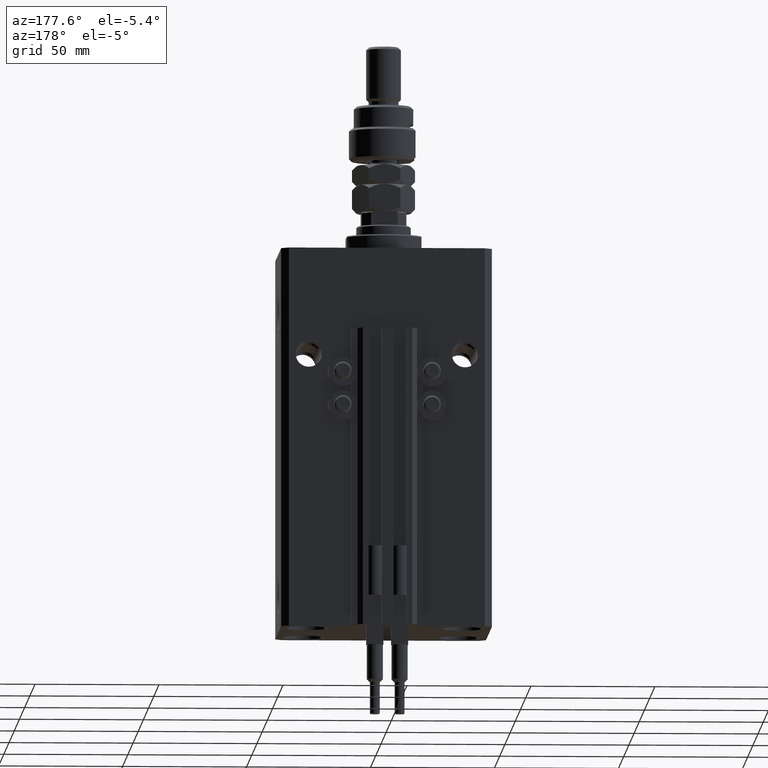
[diagram: clean part render]
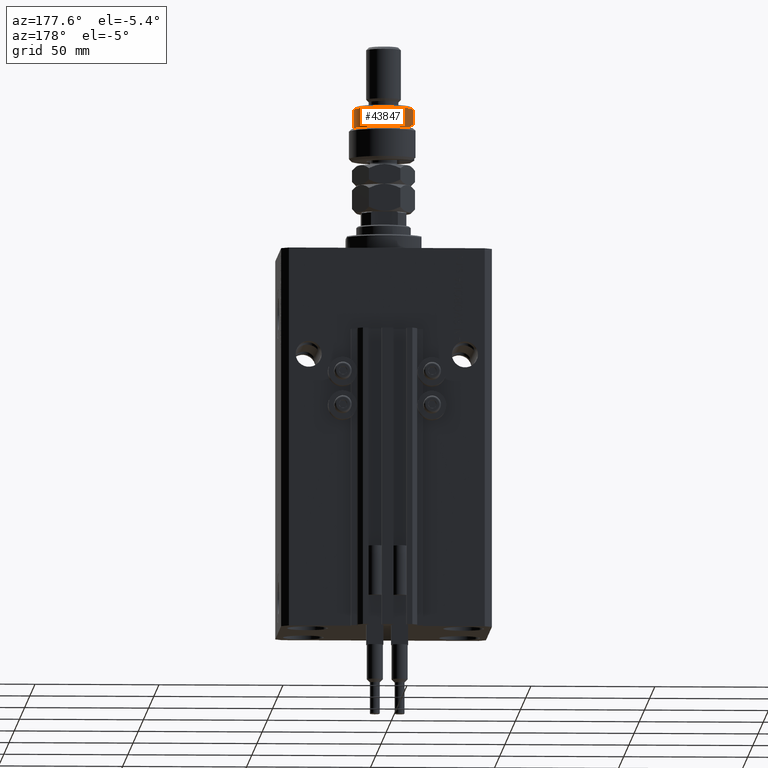
[diagram: same view with one face highlighted and labeled with its STEP entity id]
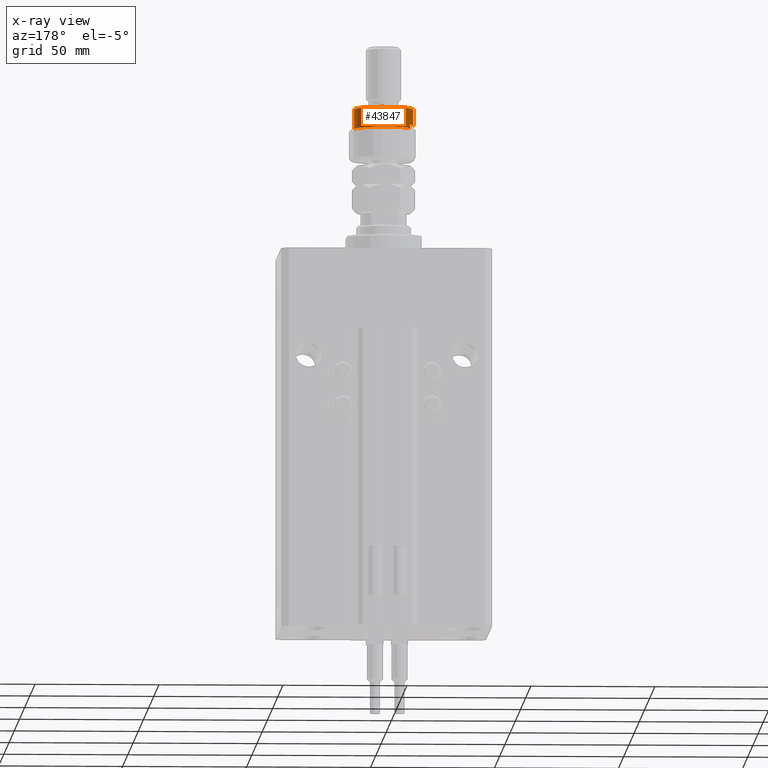
[diagram: x-ray of the same camera — body ghosted, the highlighted face saturated]
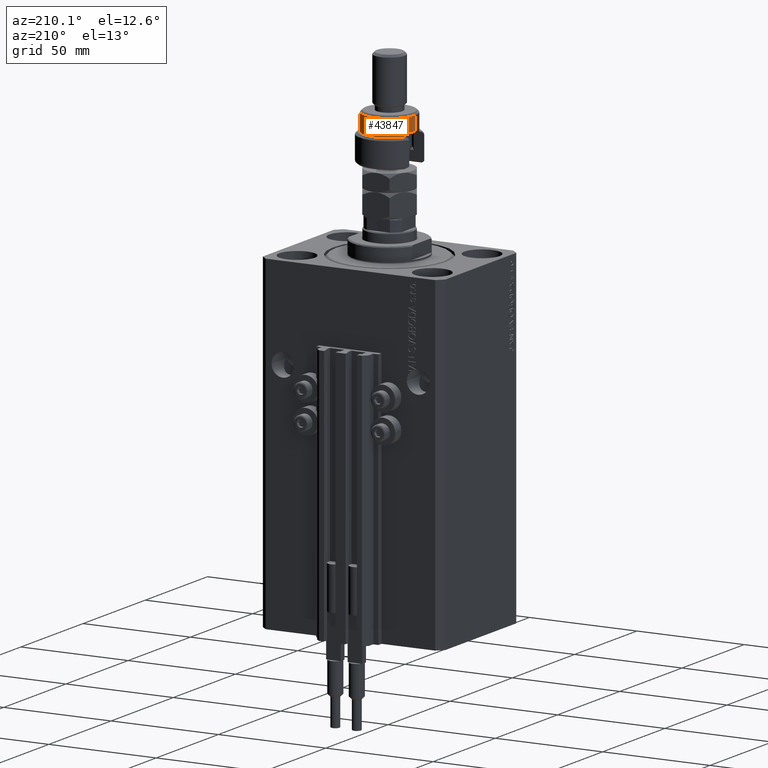
[diagram: same view with one face highlighted and labeled with its STEP entity id]
A machine part, auxiliary view. The second image highlights one B-rep face of the part: STEP entity #43847.
The next image is the same camera in x-ray: the body ghosted, the highlighted face saturated — about 0% of this face is hidden behind the body in this view.
A second angle (auxiliary view) of the same face is appended — the face is thin or edge-on in the first view.
In plain terms, the highlighted cylindrical surface (edge-blend (fillet) strip) has radius 12 mm, axis along (-0, -0, -1).
Its self-contained STEP definition (entity closure, byte-faithful):
#1036 = FACE_OUTER_BOUND ( 'NONE', #5955, .T. ) ;
#1493 = CARTESIAN_POINT ( 'NONE',  ( 12.00000000000000178, 1.469576158976824144E-15, 20.99999999999999645 ) ) ;
#3099 = VERTEX_POINT ( 'NONE', #1493 ) ;
#4394 = CARTESIAN_POINT ( 'NONE',  ( -10.39230484541326760, 6.000000000000000000, 13.00000000000000000 ) ) ;
#4901 = ORIENTED_EDGE ( 'NONE', *, *, #8968, .F. ) ;
#5398 = EDGE_CURVE ( 'NONE', #26804, #3099, #46182, .T. ) ;
#5955 = EDGE_LOOP ( 'NONE', ( #8530, #27721, #19606, #34993, #4901, #8810 ) ) ;
#6442 = AXIS2_PLACEMENT_3D ( 'NONE', #20682, #13180, #12912 ) ;
#6498 = AXIS2_PLACEMENT_3D ( 'NONE', #12689, #25138, #40987 ) ;
#7098 = DIRECTION ( 'NONE',  ( -0.000000000000000000, -0.000000000000000000, -1.000000000000000000 ) ) ;
#8530 = ORIENTED_EDGE ( 'NONE', *, *, #5398, .T. ) ;
#8810 = ORIENTED_EDGE ( 'NONE', *, *, #30148, .F. ) ;
#8968 = EDGE_CURVE ( 'NONE', #17891, #13628, #33924, .T. ) ;
#11838 = CIRCLE ( 'NONE', #29223, 12.00000000000000178 ) ;
#12689 = CARTESIAN_POINT ( 'NONE',  ( 0.000000000000000000, 0.000000000000000000, 22.00000000000000000 ) ) ;
#12912 = DIRECTION ( 'NONE',  ( 1.000000000000000000, 0.000000000000000000, 0.000000000000000000 ) ) ;
#13180 = DIRECTION ( 'NONE',  ( 0.000000000000000000, 0.000000000000000000, -1.000000000000000000 ) ) ;
#13628 = VERTEX_POINT ( 'NONE', #47934 ) ;
#13786 = LINE ( 'NONE', #29878, #37633 ) ;
#14048 = DIRECTION ( 'NONE',  ( 0.000000000000000000, 0.000000000000000000, 1.000000000000000000 ) ) ;
#14211 = VECTOR ( 'NONE', #44972, 1000.000000000000000 ) ;
#14717 = DIRECTION ( 'NONE',  ( 0.000000000000000000, 0.000000000000000000, -1.000000000000000000 ) ) ;
#14750 = CARTESIAN_POINT ( 'NONE',  ( 12.00000000000000178, 1.469576158976824144E-15, 13.00000000000000000 ) ) ;
#17891 = VERTEX_POINT ( 'NONE', #28614 ) ;
#17993 = DIRECTION ( 'NONE',  ( 1.000000000000000000, 0.000000000000000000, 0.000000000000000000 ) ) ;
#19606 = ORIENTED_EDGE ( 'NONE', *, *, #25584, .T. ) ;
#20507 = VERTEX_POINT ( 'NONE', #4394 ) ;
#20682 = CARTESIAN_POINT ( 'NONE',  ( 0.000000000000000000, 0.000000000000000000, 20.99999999999999645 ) ) ;
#22902 = LINE ( 'NONE', #43159, #36744 ) ;
#23169 = EDGE_CURVE ( 'NONE', #3099, #26034, #28641, .T. ) ;
#25138 = DIRECTION ( 'NONE',  ( -0.000000000000000000, -0.000000000000000000, -1.000000000000000000 ) ) ;
#25584 = EDGE_CURVE ( 'NONE', #26034, #20507, #11838, .T. ) ;
#26034 = VERTEX_POINT ( 'NONE', #14750 ) ;
#26475 = AXIS2_PLACEMENT_3D ( 'NONE', #46867, #14717, #47125 ) ;
#26545 = CARTESIAN_POINT ( 'NONE',  ( 0.000000000000000000, 0.000000000000000000, 13.00000000000000000 ) ) ;
#26804 = VERTEX_POINT ( 'NONE', #44154 ) ;
#27721 = ORIENTED_EDGE ( 'NONE', *, *, #23169, .T. ) ;
#28036 = EDGE_CURVE ( 'NONE', #20507, #13628, #13786, .T. ) ;
#28614 = CARTESIAN_POINT ( 'NONE',  ( -12.00000000000000178, 0.000000000000000000, 14.50000000000000000 ) ) ;
#28641 = LINE ( 'NONE', #48337, #14211 ) ;
#29223 = AXIS2_PLACEMENT_3D ( 'NONE', #26545, #37236, #17993 ) ;
#29878 = CARTESIAN_POINT ( 'NONE',  ( -10.39230484541326760, 6.000000000000000000, 22.00000000000000000 ) ) ;
#30148 = EDGE_CURVE ( 'NONE', #26804, #17891, #22902, .T. ) ;
#32422 = CYLINDRICAL_SURFACE ( 'NONE', #6498, 12.00000000000000178 ) ;
#33924 = CIRCLE ( 'NONE', #26475, 12.00000000000000178 ) ;
#34993 = ORIENTED_EDGE ( 'NONE', *, *, #28036, .T. ) ;
#36744 = VECTOR ( 'NONE', #7098, 1000.000000000000000 ) ;
#37236 = DIRECTION ( 'NONE',  ( 0.000000000000000000, 0.000000000000000000, 1.000000000000000000 ) ) ;
#37633 = VECTOR ( 'NONE', #14048, 1000.000000000000000 ) ;
#40987 = DIRECTION ( 'NONE',  ( -1.000000000000000000, 0.000000000000000000, 0.000000000000000000 ) ) ;
#43159 = CARTESIAN_POINT ( 'NONE',  ( -12.00000000000000178, 0.000000000000000000, 22.00000000000000000 ) ) ;
#43847 = ADVANCED_FACE ( 'NONE', ( #1036 ), #32422, .T. ) ;
#44154 = CARTESIAN_POINT ( 'NONE',  ( -12.00000000000000178, 0.000000000000000000, 20.99999999999999645 ) ) ;
#44972 = DIRECTION ( 'NONE',  ( -0.000000000000000000, -0.000000000000000000, -1.000000000000000000 ) ) ;
#46182 = CIRCLE ( 'NONE', #6442, 12.00000000000000178 ) ;
#46867 = CARTESIAN_POINT ( 'NONE',  ( 0.000000000000000000, 0.000000000000000000, 14.50000000000000000 ) ) ;
#47125 = DIRECTION ( 'NONE',  ( -1.000000000000000000, 0.000000000000000000, 0.000000000000000000 ) ) ;
#47934 = CARTESIAN_POINT ( 'NONE',  ( -10.39230484541326582, 5.999999999999998224, 14.50000000000000000 ) ) ;
#48337 = CARTESIAN_POINT ( 'NONE',  ( 12.00000000000000178, 1.469576158976824144E-15, 22.00000000000000000 ) ) ;